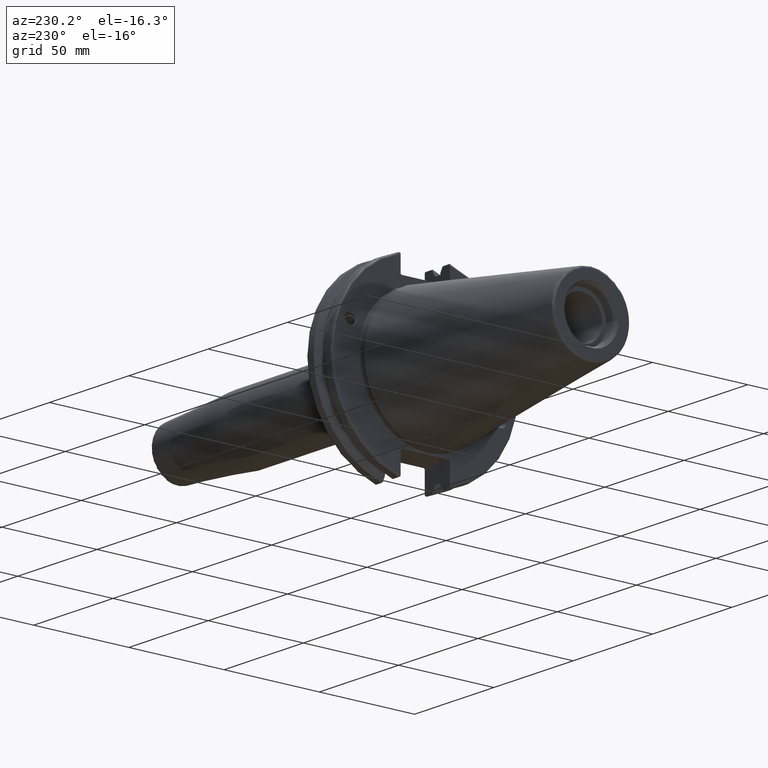
[diagram: clean part render]
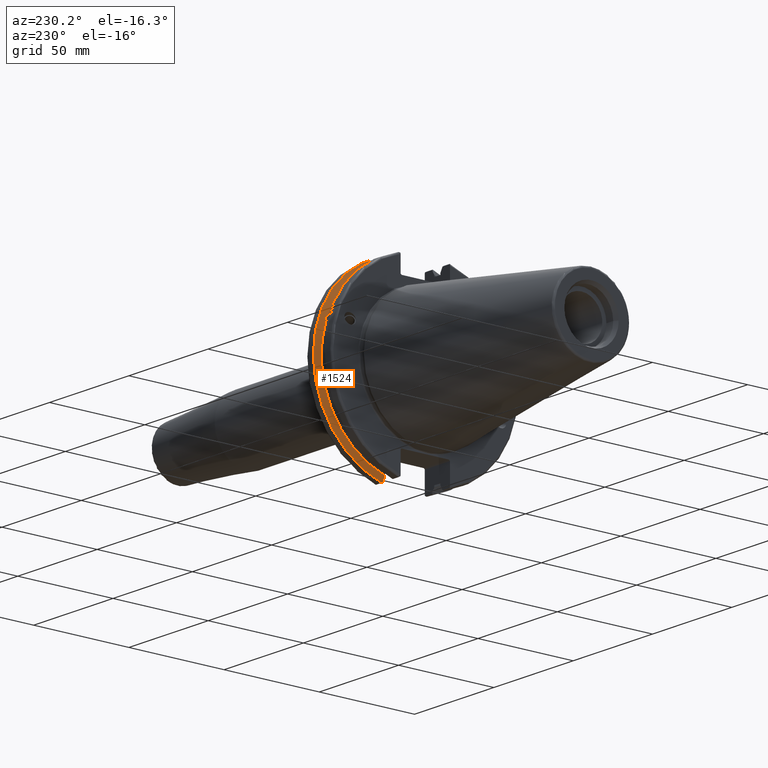
[diagram: same view with one face highlighted and labeled with its STEP entity id]
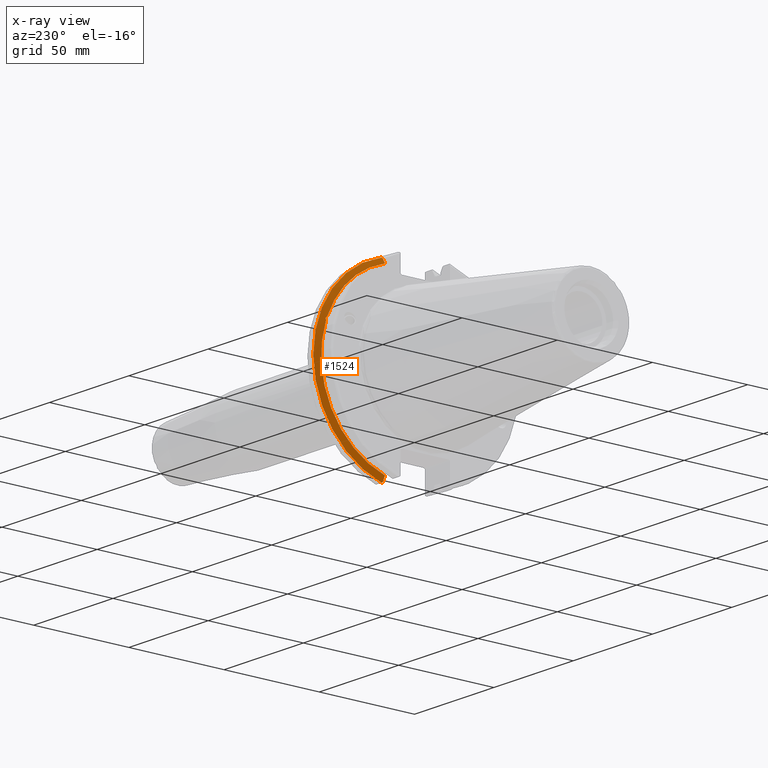
[diagram: x-ray of the same camera — body ghosted, the highlighted face saturated]
A machine part, auxiliary view. The second image highlights one B-rep face of the part: STEP entity #1524.
The next image is the same camera in x-ray: the body ghosted, the highlighted face saturated — about 0% of this face is hidden behind the body in this view.
In plain terms, the highlighted conical surface has half-angle 60 deg.
Its self-contained STEP definition (entity closure, byte-faithful):
#23=(
BOUNDED_CURVE()
B_SPLINE_CURVE(2,(#2840,#2841,#2842),.UNSPECIFIED.,.F.,.F.)
B_SPLINE_CURVE_WITH_KNOTS((3,3),(0.325260944932521,0.390084992222202),
 .UNSPECIFIED.)
CURVE()
GEOMETRIC_REPRESENTATION_ITEM()
RATIONAL_B_SPLINE_CURVE((1.00019140645994,1.00011477674864,1.))
REPRESENTATION_ITEM('')
);
#24=(
BOUNDED_CURVE()
B_SPLINE_CURVE(2,(#2854,#2855,#2856),.UNSPECIFIED.,.F.,.F.)
B_SPLINE_CURVE_WITH_KNOTS((3,3),(0.0558332664532001,0.331657177124504),
 .UNSPECIFIED.)
CURVE()
GEOMETRIC_REPRESENTATION_ITEM()
RATIONAL_B_SPLINE_CURVE((1.00012873636632,1.00038235574022,1.))
REPRESENTATION_ITEM('')
);
#29=(
BOUNDED_CURVE()
B_SPLINE_CURVE(2,(#3019,#3020,#3021),.UNSPECIFIED.,.F.,.F.)
B_SPLINE_CURVE_WITH_KNOTS((3,3),(0.,0.275823910671402),.UNSPECIFIED.)
CURVE()
GEOMETRIC_REPRESENTATION_ITEM()
RATIONAL_B_SPLINE_CURVE((1.,1.00038235574129,1.00012873636668))
REPRESENTATION_ITEM('')
);
#30=(
BOUNDED_CURVE()
B_SPLINE_CURVE(2,(#3036,#3037,#3038),.UNSPECIFIED.,.F.,.F.)
B_SPLINE_CURVE_WITH_KNOTS((3,3),(0.,0.0648240472897064),.UNSPECIFIED.)
CURVE()
GEOMETRIC_REPRESENTATION_ITEM()
RATIONAL_B_SPLINE_CURVE((1.,1.00011477674844,1.00019140645961))
REPRESENTATION_ITEM('')
);
#50=B_SPLINE_CURVE_WITH_KNOTS('',3,(#2644,#2645,#2646,#2647,#2648,#2649,
#2650,#2651),.UNSPECIFIED.,.F.,.F.,(4,2,2,4),(0.426712868358719,0.441644498666905,
0.480313313223129,0.518982127779353),.UNSPECIFIED.);
#54=B_SPLINE_CURVE_WITH_KNOTS('',3,(#2706,#2707,#2708,#2709,#2710,#2711,
#2712,#2713),.UNSPECIFIED.,.F.,.F.,(4,2,2,4),(0.518982127779353,0.557650942335576,
0.5963197568918,0.611251387199989),.UNSPECIFIED.);
#80=CONICAL_SURFACE('',#1703,47.8172386482472,1.0471975511966);
#425=FACE_OUTER_BOUND('',#529,.T.);
#529=EDGE_LOOP('',(#1382,#1383,#1384,#1385,#1386,#1387,#1388,#1389,#1390));
#587=CIRCLE('',#1640,46.4219772964944);
#609=CIRCLE('',#1696,49.2125);
#612=CIRCLE('',#1704,46.4219772964944);
#691=VERTEX_POINT('',#2641);
#692=VERTEX_POINT('',#2643);
#699=VERTEX_POINT('',#2704);
#708=VERTEX_POINT('',#2746);
#734=VERTEX_POINT('',#2837);
#735=VERTEX_POINT('',#2839);
#760=VERTEX_POINT('',#3016);
#761=VERTEX_POINT('',#3018);
#764=VERTEX_POINT('',#3034);
#865=EDGE_CURVE('',#692,#691,#50,.T.);
#873=EDGE_CURVE('',#691,#699,#54,.T.);
#885=EDGE_CURVE('',#708,#692,#587,.T.);
#918=EDGE_CURVE('',#734,#735,#23,.T.);
#923=EDGE_CURVE('',#734,#708,#24,.T.);
#968=EDGE_CURVE('',#761,#760,#29,.T.);
#976=EDGE_CURVE('',#764,#760,#30,.T.);
#977=EDGE_CURVE('',#735,#764,#609,.T.);
#983=EDGE_CURVE('',#699,#761,#612,.T.);
#1382=ORIENTED_EDGE('',*,*,#865,.T.);
#1383=ORIENTED_EDGE('',*,*,#873,.T.);
#1384=ORIENTED_EDGE('',*,*,#983,.T.);
#1385=ORIENTED_EDGE('',*,*,#968,.T.);
#1386=ORIENTED_EDGE('',*,*,#976,.F.);
#1387=ORIENTED_EDGE('',*,*,#977,.F.);
#1388=ORIENTED_EDGE('',*,*,#918,.F.);
#1389=ORIENTED_EDGE('',*,*,#923,.T.);
#1390=ORIENTED_EDGE('',*,*,#885,.T.);
#1524=ADVANCED_FACE('',(#425),#80,.T.);
#1640=AXIS2_PLACEMENT_3D('',#2747,#1927,#1928);
#1696=AXIS2_PLACEMENT_3D('',#3040,#2084,#2085);
#1703=AXIS2_PLACEMENT_3D('',#3053,#2101,#2102);
#1704=AXIS2_PLACEMENT_3D('',#3054,#2103,#2104);
#1927=DIRECTION('center_axis',(1.,0.,0.));
#1928=DIRECTION('ref_axis',(0.,0.,-1.));
#2084=DIRECTION('center_axis',(1.,0.,0.));
#2085=DIRECTION('ref_axis',(0.,0.,-1.));
#2101=DIRECTION('center_axis',(1.,0.,0.));
#2102=DIRECTION('ref_axis',(0.,1.,0.));
#2103=DIRECTION('center_axis',(1.,0.,0.));
#2104=DIRECTION('ref_axis',(0.,0.,-1.));
#2641=CARTESIAN_POINT('',(13.2341,43.923494649906,15.9868446375166));
#2643=CARTESIAN_POINT('',(13.0491,43.9096390749305,15.0646464421033));
#2644=CARTESIAN_POINT('Ctrl Pts',(13.0491,43.9096390749305,15.0646464421033));
#2645=CARTESIAN_POINT('Ctrl Pts',(13.0660815609661,43.9250360001461,15.1104047527575));
#2646=CARTESIAN_POINT('Ctrl Pts',(13.0821132459668,43.9385582852181,15.1564111356409));
#2647=CARTESIAN_POINT('Ctrl Pts',(13.1358132615496,43.9797830409459,15.3217566390709));
#2648=CARTESIAN_POINT('Ctrl Pts',(13.1719838933644,43.9989016655819,15.4570249042868));
#2649=CARTESIAN_POINT('Ctrl Pts',(13.2212913174802,43.9931221605126,15.7289849146254));
#2650=CARTESIAN_POINT('Ctrl Pts',(13.2341,43.9675796948952,15.8657219718732));
#2651=CARTESIAN_POINT('Ctrl Pts',(13.2341,43.923494649906,15.9868446375166));
#2704=CARTESIAN_POINT('',(13.0491,43.3201030900029,16.684383248648));
#2706=CARTESIAN_POINT('Ctrl Pts',(13.2341,43.923494649906,15.9868446375166));
#2707=CARTESIAN_POINT('Ctrl Pts',(13.2341,43.8794096049169,16.10796730316));
#2708=CARTESIAN_POINT('Ctrl Pts',(13.2212913174802,43.8110833825827,16.2291323464527));
#2709=CARTESIAN_POINT('Ctrl Pts',(13.1719838933644,43.6406982153492,16.441180795372));
#2710=CARTESIAN_POINT('Ctrl Pts',(13.1358132615496,43.5391037343221,16.5325130832406));
#2711=CARTESIAN_POINT('Ctrl Pts',(13.0821132459668,43.4012416983557,16.6326763251437));
#2712=CARTESIAN_POINT('Ctrl Pts',(13.0660815609661,43.3613106941341,16.6592273018006));
#2713=CARTESIAN_POINT('Ctrl Pts',(13.0491,43.3201030900029,16.684383248648));
#2746=CARTESIAN_POINT('',(13.0491,12.95,-44.5791147973605));
#2747=CARTESIAN_POINT('Origin',(13.0491,0.,0.));
#2837=CARTESIAN_POINT('',(14.3818103943757,12.95,-46.9780755322918));
#2839=CARTESIAN_POINT('',(14.6602090340487,13.4317035994433,-47.3440544806494));
#2840=CARTESIAN_POINT('Ctrl Pts',(14.3818103943757,12.95,-46.9780755322918));
#2841=CARTESIAN_POINT('Ctrl Pts',(14.5199310333617,13.1896660169965,-47.1601640966264));
#2842=CARTESIAN_POINT('Ctrl Pts',(14.6602090340487,13.4317035994433,-47.3440544806494));
#2854=CARTESIAN_POINT('Ctrl Pts',(14.3818103943757,12.95,-46.9780755322918));
#2855=CARTESIAN_POINT('Ctrl Pts',(13.6979955094851,12.95,-45.7494966802933));
#2856=CARTESIAN_POINT('Ctrl Pts',(13.0491,12.95,-44.5791147973604));
#3016=CARTESIAN_POINT('',(14.3818103943757,12.95,46.9780755322918));
#3018=CARTESIAN_POINT('',(13.0491,12.95,44.5791147973604));
#3019=CARTESIAN_POINT('Ctrl Pts',(13.0491,12.95,44.5791147973604));
#3020=CARTESIAN_POINT('Ctrl Pts',(13.6979955094846,12.95,45.7494966802924));
#3021=CARTESIAN_POINT('Ctrl Pts',(14.3818103943757,12.95,46.9780755322918));
#3034=CARTESIAN_POINT('',(14.6602090340487,13.4317035994433,47.3440544806494));
#3036=CARTESIAN_POINT('Ctrl Pts',(14.6602090340487,13.4317035994433,47.3440544806494));
#3037=CARTESIAN_POINT('Ctrl Pts',(14.5199310333618,13.1896660169966,47.1601640966264));
#3038=CARTESIAN_POINT('Ctrl Pts',(14.3818103943757,12.95,46.9780755322918));
#3040=CARTESIAN_POINT('Origin',(14.6602090340487,0.,0.));
#3053=CARTESIAN_POINT('Origin',(13.8546545170244,0.,0.));
#3054=CARTESIAN_POINT('Origin',(13.0491,0.,0.));